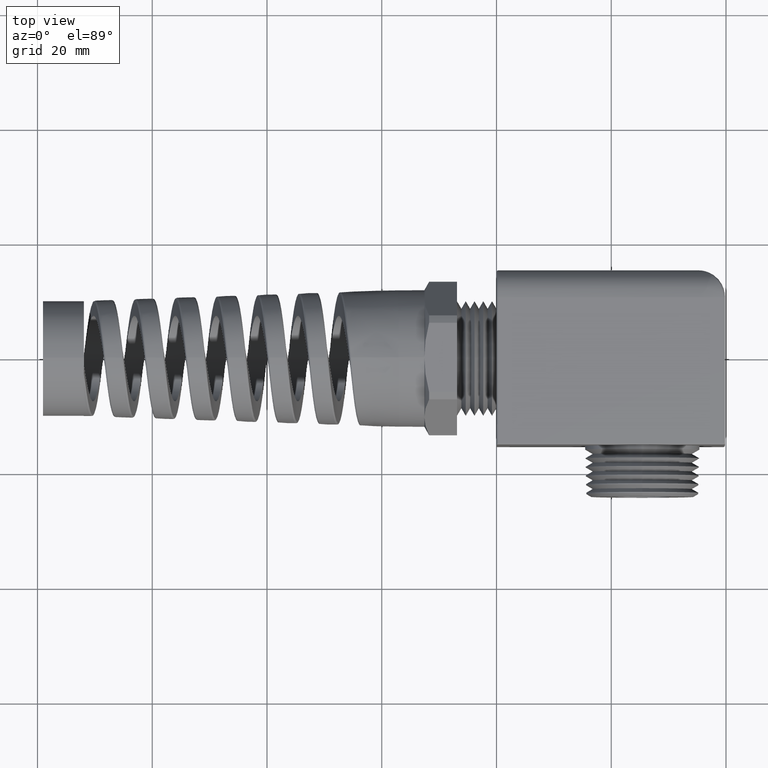
[diagram: clean part render]
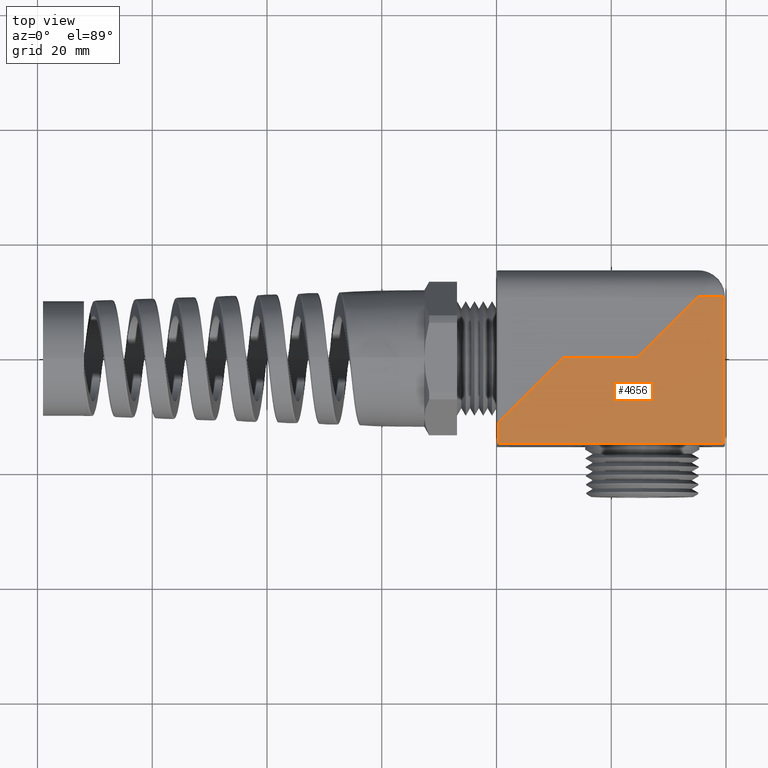
[diagram: same view with one face highlighted and labeled with its STEP entity id]
A machine part, top view. The second image highlights one B-rep face of the part: STEP entity #4656.
In plain terms, the highlighted planar face has unit normal (0, 0, -1).
Its self-contained STEP definition (entity closure, byte-faithful):
#4589 = ORIENTED_EDGE ( 'NONE', *, *, #5656, .F. ) ;
#4590 = ORIENTED_EDGE ( 'NONE', *, *, #5522, .F. ) ;
#4591 = ORIENTED_EDGE ( 'NONE', *, *, #4592, .T. ) ;
#4592 = EDGE_CURVE ( 'NONE', #5520, #4690, #10322, .T. ) ;
#4593 = ORIENTED_EDGE ( 'NONE', *, *, #4665, .T. ) ;
#4594 = ORIENTED_EDGE ( 'NONE', *, *, #4595, .T. ) ;
#4595 = EDGE_CURVE ( 'NONE', #5475, #4596, #10318, .T. ) ;
#4596 = VERTEX_POINT ( 'NONE', #10314 ) ;
#4597 = ORIENTED_EDGE ( 'NONE', *, *, #4598, .T. ) ;
#4598 = EDGE_CURVE ( 'NONE', #4596, #5545, #10313, .T. ) ;
#4656 = ADVANCED_FACE ( 'NONE', ( #10561 ), #10560, .F. ) ;
#4657 = EDGE_LOOP ( 'NONE', ( #4658, #4589, #4590, #4591, #4593, #4594, #4597 ) ) ;
#4658 = ORIENTED_EDGE ( 'NONE', *, *, #5544, .F. ) ;
#4665 = EDGE_CURVE ( 'NONE', #4690, #5475, #10556, .T. ) ;
#4690 = VERTEX_POINT ( 'NONE', #10470 ) ;
#5475 = VERTEX_POINT ( 'NONE', #5777 ) ;
#5520 = VERTEX_POINT ( 'NONE', #5839 ) ;
#5522 = EDGE_CURVE ( 'NONE', #5520, #5549, #5838, .T. ) ;
#5542 = VERTEX_POINT ( 'NONE', #8162 ) ;
#5544 = EDGE_CURVE ( 'NONE', #5542, #5545, #8161, .T. ) ;
#5545 = VERTEX_POINT ( 'NONE', #8157 ) ;
#5549 = VERTEX_POINT ( 'NONE', #8152 ) ;
#5656 = EDGE_CURVE ( 'NONE', #5549, #5542, #8327, .T. ) ;
#5777 = CARTESIAN_POINT ( 'NONE',  ( 1.555344632768361500, -0.5873446327683615700, 0.4700000000000000800 ) ) ;
#5838 = LINE ( 'NONE', #5884, #5883 ) ;
#5839 = CARTESIAN_POINT ( 'NONE',  ( 0.01265536723163842100, -0.4513446327683515200, 0.4700000000000000800 ) ) ;
#5882 = DIRECTION ( 'NONE',  ( 0.7071067811865512400, 0.7071067811865436900, 0.0000000000000000000 ) ) ;
#5883 = VECTOR ( 'NONE', #5882, 39.37007874015748900 ) ;
#5884 = CARTESIAN_POINT ( 'NONE',  ( 0.9668369820585434000, 0.5028369820585433200, 0.4700000000000000800 ) ) ;
#8152 = CARTESIAN_POINT ( 'NONE',  ( 0.4639999999999946900, 0.0000000000000000000, 0.4700000000000000800 ) ) ;
#8157 = CARTESIAN_POINT ( 'NONE',  ( 1.381333333333332600, 0.4133333333333332700, 0.4700000000000000800 ) ) ;
#8158 = DIRECTION ( 'NONE',  ( 0.7071067811865512400, 0.7071067811865436900, 0.0000000000000000000 ) ) ;
#8159 = VECTOR ( 'NONE', #8158, 39.37007874015748900 ) ;
#8160 = CARTESIAN_POINT ( 'NONE',  ( 1.218836982058540700, 0.2508369820585432100, 0.4700000000000000800 ) ) ;
#8161 = LINE ( 'NONE', #8160, #8159 ) ;
#8162 = CARTESIAN_POINT ( 'NONE',  ( 0.9679999999999949800, -6.137788176939989100E-018, 0.4700000000000000800 ) ) ;
#8324 = DIRECTION ( 'NONE',  ( 1.000000000000000000, 2.319516484482452200E-017, 0.0000000000000000000 ) ) ;
#8325 = VECTOR ( 'NONE', #8324, 39.37007874015748100 ) ;
#8326 = CARTESIAN_POINT ( 'NONE',  ( 1.232614984114216400, 0.0000000000000000000, 0.4700000000000000800 ) ) ;
#8327 = LINE ( 'NONE', #8326, #8325 ) ;
#10303 = DIRECTION ( 'NONE',  ( -1.000000000000000000, 0.0000000000000000000, 0.0000000000000000000 ) ) ;
#10304 = VECTOR ( 'NONE', #10303, 39.37007874015748100 ) ;
#10305 = CARTESIAN_POINT ( 'NONE',  ( 1.232614984114216400, 0.4133333333333332700, 0.4700000000000000800 ) ) ;
#10313 = LINE ( 'NONE', #10305, #10304 ) ;
#10314 = CARTESIAN_POINT ( 'NONE',  ( 1.555344632768361800, 0.4133333333333332700, 0.4700000000000000800 ) ) ;
#10315 = DIRECTION ( 'NONE',  ( 2.276539994720219800E-016, 1.000000000000000000, 0.0000000000000000000 ) ) ;
#10316 = VECTOR ( 'NONE', #10315, 39.37007874015748100 ) ;
#10317 = CARTESIAN_POINT ( 'NONE',  ( 1.555344632768361800, 0.4133333333333332200, 0.4700000000000000800 ) ) ;
#10318 = LINE ( 'NONE', #10317, #10316 ) ;
#10319 = DIRECTION ( 'NONE',  ( 0.0000000000000000000, -1.000000000000000000, 0.0000000000000000000 ) ) ;
#10320 = VECTOR ( 'NONE', #10319, 39.37007874015748100 ) ;
#10321 = CARTESIAN_POINT ( 'NONE',  ( 0.01265536723163842100, 0.2370589800028674900, 0.4700000000000000800 ) ) ;
#10322 = LINE ( 'NONE', #10321, #10320 ) ;
#10470 = CARTESIAN_POINT ( 'NONE',  ( 0.01265536723163841900, -0.5873446327683616900, 0.4700000000000000800 ) ) ;
#10553 = DIRECTION ( 'NONE',  ( 1.000000000000000000, 1.306687496969513800E-016, 0.0000000000000000000 ) ) ;
#10554 = VECTOR ( 'NONE', #10553, 39.37007874015748100 ) ;
#10555 = CARTESIAN_POINT ( 'NONE',  ( 1.567999999999999800, -0.5873446327683615700, 0.4700000000000000800 ) ) ;
#10556 = LINE ( 'NONE', #10555, #10554 ) ;
#10557 = DIRECTION ( 'NONE',  ( 0.0000000000000000000, 0.0000000000000000000, -1.000000000000000000 ) ) ;
#10558 = CARTESIAN_POINT ( 'NONE',  ( 1.232614984114216400, 0.2370589800028674900, 0.4700000000000000800 ) ) ;
#10559 = AXIS2_PLACEMENT_3D ( 'NONE', #10558, #10557, #10602 ) ;
#10560 = PLANE ( 'NONE',  #10559 ) ;
#10561 = FACE_OUTER_BOUND ( 'NONE', #4657, .T. ) ;
#10602 = DIRECTION ( 'NONE',  ( -1.000000000000000000, 0.0000000000000000000, 0.0000000000000000000 ) ) ;